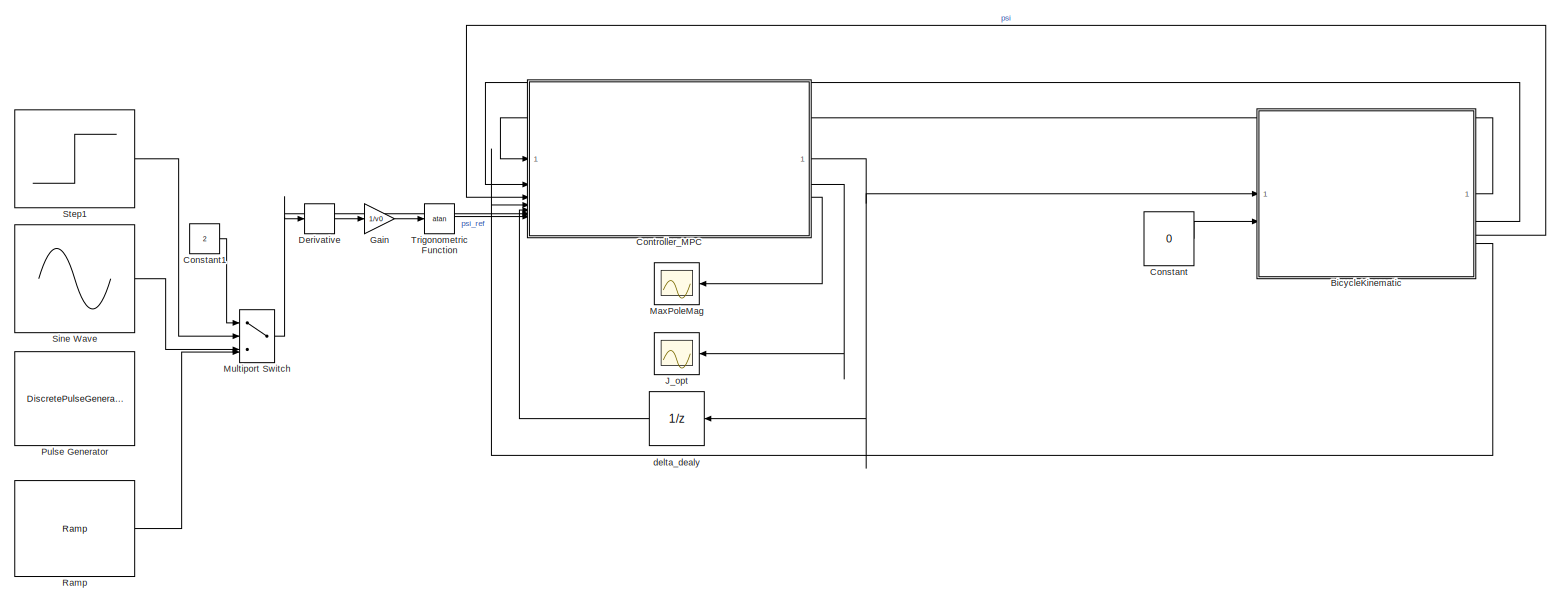
[diagram: root canvas - part 1/1, most of the canvas]
MODEL slx_6ee872757975
KIND model
CONFIG AbsTol = auto
CONFIG EnableMultiTasking = off
CONFIG FixedStep = 0.05
CONFIG MaxStep = auto
CONFIG MinStep = auto
CONFIG RelTol = 1e-4
CONFIG SampleTimeConstraint = Unconstrained
CONFIG SolverName = FixedStepDiscrete
CONFIG StartTime = 0.0
CONFIG StopTime = 20
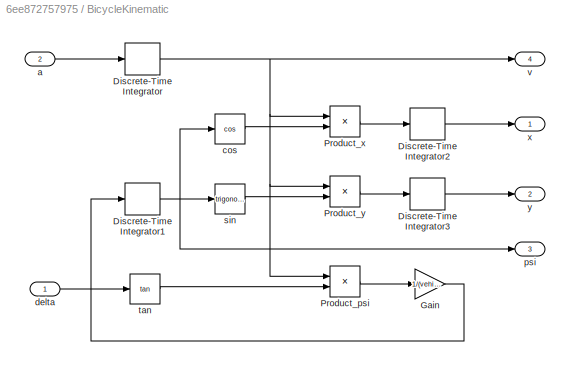
BLOCK [SubSystem] BicycleKinematic
BLOCK [DiscreteIntegrator] BicycleKinematic/Discrete-Time Integrator
  ICPrevOutput = DiscIntNeverNeededParam
  ICPrevScaledInput = DiscIntNeverNeededParam
  InitialCondition = v0
  InitialConditionSetting = Auto
  SampleTime = 0.05
BLOCK [DiscreteIntegrator] BicycleKinematic/Discrete-Time Integrator1
  ICPrevOutput = DiscIntNeverNeededParam
  ICPrevScaledInput = DiscIntNeverNeededParam
  InitialCondition = psi0
  InitialConditionSetting = Auto
  SampleTime = 0.05
BLOCK [DiscreteIntegrator] BicycleKinematic/Discrete-Time Integrator2
  ICPrevOutput = DiscIntNeverNeededParam
  ICPrevScaledInput = DiscIntNeverNeededParam
  InitialCondition = x0
  InitialConditionSetting = Auto
  SampleTime = 0.05
BLOCK [DiscreteIntegrator] BicycleKinematic/Discrete-Time Integrator3
  ICPrevOutput = DiscIntNeverNeededParam
  ICPrevScaledInput = DiscIntNeverNeededParam
  InitialCondition = y0
  InitialConditionSetting = Auto
  SampleTime = 0.05
BLOCK [Gain] BicycleKinematic/Gain
  Gain = 1/(vehicleParams.a + vehicleParams.b)
BLOCK [Product] BicycleKinematic/Product_psi
BLOCK [Product] BicycleKinematic/Product_x
BLOCK [Product] BicycleKinematic/Product_y
BLOCK [Inport] BicycleKinematic/a
  Port = 2
BLOCK [Trigonometry] BicycleKinematic/cos
  Operator = cos
BLOCK [Inport] BicycleKinematic/delta
BLOCK [Outport] BicycleKinematic/psi
  Port = 3
BLOCK [Trigonometry] BicycleKinematic/sin
BLOCK [Trigonometry] BicycleKinematic/tan
  Operator = tan
BLOCK [Outport] BicycleKinematic/v
  Port = 4
BLOCK [Outport] BicycleKinematic/x
BLOCK [Outport] BicycleKinematic/y
  Port = 2
BLOCK [Constant] Constant
  Value = 0
BLOCK [Constant] Constant1
  Value = 2
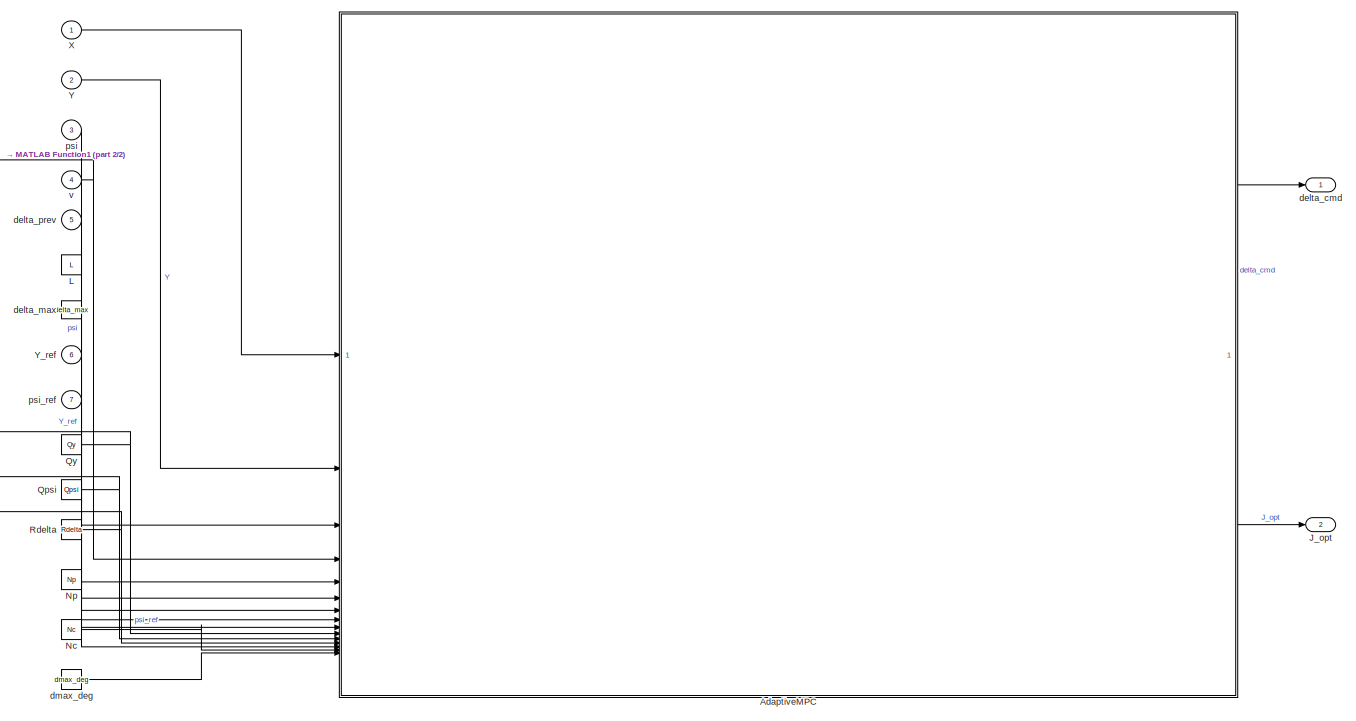
[diagram: Controller_MPC - part 1/2, center side, full height]
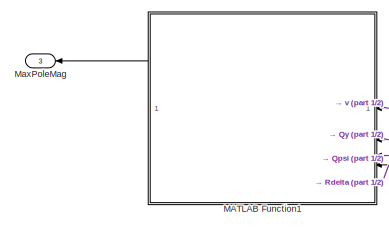
[diagram: Controller_MPC - part 2/2, middle left region]
BLOCK [SubSystem] Controller_MPC
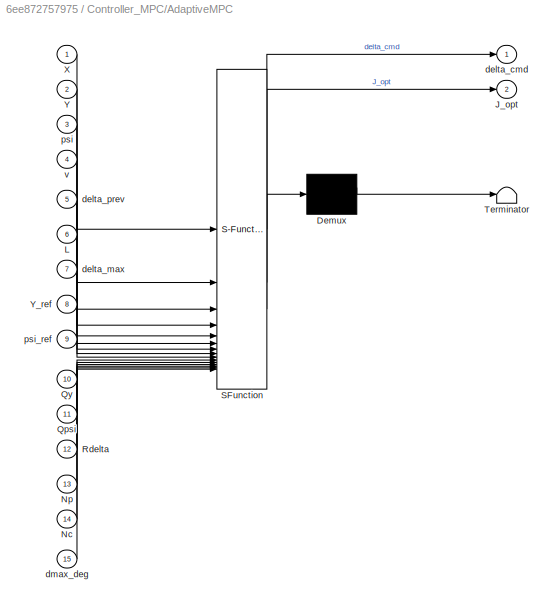
BLOCK [SubSystem] Controller_MPC/AdaptiveMPC
  ErrorFcn = Stateflow.Translate.translate
  PermitHierarchicalResolution = ExplicitOnly
  SFBlockType = MATLAB Function
  TreatAsAtomicUnit = on
BLOCK [Demux] Controller_MPC/AdaptiveMPC/ Demux 
  Outputs = 1
BLOCK [S-Function] Controller_MPC/AdaptiveMPC/ SFunction 
  EnableBusSupport = off
  FunctionName = sf_sfun
  PortCounts = [15 3]
  SFcnIsStateOwnerBlock = off
  SFunctionDeploymentMode = off
  Tag = Stateflow S-Function 2
BLOCK [Terminator] Controller_MPC/AdaptiveMPC/ Terminator 
BLOCK [Outport] Controller_MPC/AdaptiveMPC/J_opt
  Port = 2
BLOCK [Inport] Controller_MPC/AdaptiveMPC/L
  Port = 6
BLOCK [Inport] Controller_MPC/AdaptiveMPC/Nc
  Port = 14
BLOCK [Inport] Controller_MPC/AdaptiveMPC/Np
  Port = 13
BLOCK [Inport] Controller_MPC/AdaptiveMPC/Qpsi
  Port = 11
BLOCK [Inport] Controller_MPC/AdaptiveMPC/Qy
  Port = 10
BLOCK [Inport] Controller_MPC/AdaptiveMPC/Rdelta
  Port = 12
BLOCK [Inport] Controller_MPC/AdaptiveMPC/X
BLOCK [Inport] Controller_MPC/AdaptiveMPC/Y
  Port = 2
BLOCK [Inport] Controller_MPC/AdaptiveMPC/Y_ref
  Port = 8
BLOCK [Outport] Controller_MPC/AdaptiveMPC/delta_cmd
BLOCK [Inport] Controller_MPC/AdaptiveMPC/delta_max
  Port = 7
BLOCK [Inport] Controller_MPC/AdaptiveMPC/delta_prev
  Port = 5
BLOCK [Inport] Controller_MPC/AdaptiveMPC/dmax_deg
  Port = 15
BLOCK [Inport] Controller_MPC/AdaptiveMPC/psi
  Port = 3
BLOCK [Inport] Controller_MPC/AdaptiveMPC/psi_ref
  Port = 9
BLOCK [Inport] Controller_MPC/AdaptiveMPC/v
  Port = 4
BLOCK [Outport] Controller_MPC/J_opt
  Port = 2
BLOCK [Constant] Controller_MPC/L
  Value = L
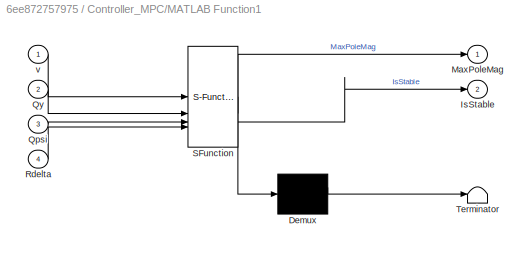
BLOCK [SubSystem] Controller_MPC/MATLAB Function1
  ErrorFcn = Stateflow.Translate.translate
  NameLocation = top
  PermitHierarchicalResolution = ExplicitOnly
  SFBlockType = MATLAB Function
  TreatAsAtomicUnit = on
BLOCK [Demux] Controller_MPC/MATLAB Function1/ Demux 
  Outputs = 1
BLOCK [S-Function] Controller_MPC/MATLAB Function1/ SFunction 
  EnableBusSupport = off
  FunctionName = sf_sfun
  PortCounts = [4 3]
  SFcnIsStateOwnerBlock = off
  SFunctionDeploymentMode = off
  Tag = Stateflow S-Function 1
BLOCK [Terminator] Controller_MPC/MATLAB Function1/ Terminator 
BLOCK [Outport] Controller_MPC/MATLAB Function1/IsStable
  Port = 2
BLOCK [Outport] Controller_MPC/MATLAB Function1/MaxPoleMag
BLOCK [Inport] Controller_MPC/MATLAB Function1/Qpsi
  Port = 3
BLOCK [Inport] Controller_MPC/MATLAB Function1/Qy
  Port = 2
BLOCK [Inport] Controller_MPC/MATLAB Function1/Rdelta
  Port = 4
BLOCK [Inport] Controller_MPC/MATLAB Function1/v
BLOCK [Outport] Controller_MPC/MaxPoleMag
  NameLocation = top
  Port = 3
BLOCK [Constant] Controller_MPC/Nc
  Value = Nc
BLOCK [Constant] Controller_MPC/Np
  Value = Np
BLOCK [Constant] Controller_MPC/Qpsi
  Value = Qpsi
BLOCK [Constant] Controller_MPC/Qy
  Value = Qy
BLOCK [Constant] Controller_MPC/Rdelta
  Value = Rdelta
BLOCK [Inport] Controller_MPC/X
BLOCK [Inport] Controller_MPC/Y
  Port = 2
BLOCK [Inport] Controller_MPC/Y_ref
  Port = 6
BLOCK [Outport] Controller_MPC/delta_cmd
BLOCK [Constant] Controller_MPC/delta_max
  Value = delta_max
BLOCK [Inport] Controller_MPC/delta_prev
  Port = 5
BLOCK [Constant] Controller_MPC/dmax_deg
  Value = dmax_deg
BLOCK [Inport] Controller_MPC/psi
  Port = 3
BLOCK [Inport] Controller_MPC/psi_ref
  Port = 7
BLOCK [Inport] Controller_MPC/v
  Port = 4
BLOCK [Derivative] Derivative
BLOCK [Gain] Gain
  Gain = 1/v0
BLOCK [Scope] J_opt
  ActiveDisplayYMaximum = 58.127890076972491
  ActiveDisplayYMinimum = -269.32940271572431
  DataLoggingVariableName = ScopeData2
  Floating = off
  GraphicalSettings = {"Style":{"BackgroundColor":[0.12941176470588237,0.12941176470588237,0.12941176470588237],"AxesColor":[0.07058823529411765,0.07058823529411765,0.07058823529411765],"LabelsColor":[0.8509803921568627,0.8509803921568627,0.8509803921568627],"PreserveColors":false,"Visible":[true],"LineStyle":["-"],"LineWidth":[1.5],"BarWidth":[0.9],"LineColor":["auto"],"LineFaceAlpha":[1],"LineEdgeAlpha":[1],"Marker":...<+1987ch>
  MultipleDisplayCache = [{"MaxYLimMag":1,"MaxYLimReal":58.127890076972491,"MinYLimMag":0,"MinYLimReal":-269.32940271572431,"PlotAsMagnitudePhase":false,"ShowGrid":true,"ShowLegend":false,"Title":"%<SignalLabel>","YLabel":""}]
  NameLocation = top
  NumInputPorts = 1
  ScopeFrameLocation = window
  WasSavedAsWebScope = on
  WindowPosition = [385.000000,543.000000,560.000000,420.000000,]
BLOCK [Scope] MaxPoleMag
  ActiveDisplayYMaximum = 0.92821068294370934
  ActiveDisplayYMinimum = -0.56874526901324
  DataLoggingVariableName = ScopeData5
  Floating = off
  GraphicalSettings = {"Style":{"BackgroundColor":[0.12941176470588237,0.12941176470588237,0.12941176470588237],"AxesColor":[0.07058823529411765,0.07058823529411765,0.07058823529411765],"LabelsColor":[0.8509803921568627,0.8509803921568627,0.8509803921568627],"PreserveColors":false,"Visible":[true],"LineStyle":["-"],"LineWidth":[1.5],"BarWidth":[0.9],"LineColor":["auto"],"LineFaceAlpha":[1],"LineEdgeAlpha":[1],"Marker":...<+1997ch>
  MultipleDisplayCache = [{"MaxYLimMag":1,"MaxYLimReal":0.92821068294370934,"MinYLimMag":0,"MinYLimReal":-0.56874526901324,"PlotAsMagnitudePhase":false,"ShowGrid":true,"ShowLegend":false,"Title":"%<SignalLabel>","YLabel":""}]
  NameLocation = top
  NumInputPorts = 1
  ScopeFrameLocation = window
  WasSavedAsWebScope = on
  WindowPosition = [680.000000,367.000000,560.000000,420.000000,]
BLOCK [MultiPortSwitch] Multiport Switch
  DataPortOrder = Zero-based contiguous
  InputSameDT = off
  SaturateOnIntegerOverflow = off
  zeroidx = on
BLOCK [DiscretePulseGenerator] Pulse Generator
  Period = 10
  PhaseDelay = 1
  PulseType = Time based
  PulseWidth = 10
BLOCK [Reference] Ramp  REF=simulink/Sources/Ramp
  SourceBlock = simulink/Sources/Ramp
  SourceType = Ramp
BLOCK [Sin] Sine Wave
  SampleTime = 0
BLOCK [Step] Step1
  SampleTime = 0
BLOCK [Trigonometry] Trigonometric Function
  Operator = atan
BLOCK [UnitDelay] delta_dealy
  HasFrameUpgradeWarning = on
  SampleTime = 0.05
NET BicycleKinematic/Discrete-Time Integrator1:1 -> BicycleKinematic/cos:1, BicycleKinematic/psi:1, BicycleKinematic/sin:1
LINE BicycleKinematic/Discrete-Time Integrator2:1 -> BicycleKinematic/x:1
LINE BicycleKinematic/Discrete-Time Integrator3:1 -> BicycleKinematic/y:1
NET BicycleKinematic/Discrete-Time Integrator:1 -> BicycleKinematic/Product_psi:1, BicycleKinematic/Product_x:1, BicycleKinematic/Product_y:1, BicycleKinematic/v:1
LINE BicycleKinematic/Gain:1 -> BicycleKinematic/Discrete-Time Integrator1:1
LINE BicycleKinematic/Product_psi:1 -> BicycleKinematic/Gain:1
LINE BicycleKinematic/Product_x:1 -> BicycleKinematic/Discrete-Time Integrator2:1
LINE BicycleKinematic/Product_y:1 -> BicycleKinematic/Discrete-Time Integrator3:1
LINE BicycleKinematic/a:1 -> BicycleKinematic/Discrete-Time Integrator:1
LINE BicycleKinematic/cos:1 -> BicycleKinematic/Product_x:2
LINE BicycleKinematic/delta:1 -> BicycleKinematic/tan:1
LINE BicycleKinematic/sin:1 -> BicycleKinematic/Product_y:2
LINE BicycleKinematic/tan:1 -> BicycleKinematic/Product_psi:2
LINE BicycleKinematic:1 -> Controller_MPC:1
LINE BicycleKinematic:2 -> Controller_MPC:2
LINE BicycleKinematic:3 -> Controller_MPC:3
LINE BicycleKinematic:4 -> Controller_MPC:4
LINE Constant1:1 -> Multiport Switch:1
LINE Constant:1 -> BicycleKinematic:2
LINE Controller_MPC/AdaptiveMPC:1 -> Controller_MPC/delta_cmd:1
LINE Controller_MPC/AdaptiveMPC:2 -> Controller_MPC/J_opt:1
LINE Controller_MPC/L:1 -> Controller_MPC/AdaptiveMPC:6
LINE Controller_MPC/MATLAB Function1:1 -> Controller_MPC/MaxPoleMag:1
LINE Controller_MPC/Nc:1 -> Controller_MPC/AdaptiveMPC:14
LINE Controller_MPC/Np:1 -> Controller_MPC/AdaptiveMPC:13
NET Controller_MPC/Qpsi:1 -> Controller_MPC/AdaptiveMPC:11, Controller_MPC/MATLAB Function1:3
NET Controller_MPC/Qy:1 -> Controller_MPC/AdaptiveMPC:10, Controller_MPC/MATLAB Function1:2
NET Controller_MPC/Rdelta:1 -> Controller_MPC/AdaptiveMPC:12, Controller_MPC/MATLAB Function1:4
LINE Controller_MPC/X:1 -> Controller_MPC/AdaptiveMPC:1
LINE Controller_MPC/Y:1 -> Controller_MPC/AdaptiveMPC:2
LINE Controller_MPC/Y_ref:1 -> Controller_MPC/AdaptiveMPC:8
LINE Controller_MPC/delta_max:1 -> Controller_MPC/AdaptiveMPC:7
LINE Controller_MPC/delta_prev:1 -> Controller_MPC/AdaptiveMPC:5
LINE Controller_MPC/dmax_deg:1 -> Controller_MPC/AdaptiveMPC:15
LINE Controller_MPC/psi:1 -> Controller_MPC/AdaptiveMPC:3
LINE Controller_MPC/psi_ref:1 -> Controller_MPC/AdaptiveMPC:9
NET Controller_MPC/v:1 -> Controller_MPC/AdaptiveMPC:4, Controller_MPC/MATLAB Function1:1
NET Controller_MPC:1 -> BicycleKinematic:1, delta_dealy:1
LINE Controller_MPC:2 -> J_opt:1
LINE Controller_MPC:3 -> MaxPoleMag:1
LINE Derivative:1 -> Gain:1
LINE Gain:1 -> Trigonometric Function:1
NET Multiport Switch:1 -> Controller_MPC:6, Derivative:1
LINE Ramp:1 -> Multiport Switch:4
LINE Sine Wave:1 -> Multiport Switch:3
LINE Step1:1 -> Multiport Switch:2
LINE Trigonometric Function:1 -> Controller_MPC:7
LINE delta_dealy:1 -> Controller_MPC:5
note: NET lines group one-source signal fan-out (src -> all destinations, sorted); 1:1 wires keep LINE
CHART Controller_MPC/MATLAB Function1 states=1 transitions=1
  STATE_LABEL 'eML_blk_kernel()'
  STATE_LABEL "SCRIPT:\nfunction [MaxPoleMag, IsStable] = fcn(v, Qy, Qpsi, Rdelta)\n    % [MPC 실시간 안정성 감시기 - 수정버전]\n    % Code Generation 오류 수정 완료\n    \n    % 1. 외부 함수 선언 (dlqr은 C코드 변환이 안되므로 MATLAB 엔진을 빌려 씀)\n    coder.extrinsic('dlqr'); \n\n    % 2. 차량 파라미터\n    L = 2.7;    \n    Ts = 0.05;  \n    \n    % 속도 0 방지 (계산 오류 방지)\n    v_safe = v;\n    if v_safe < 0.1\n        v_safe = 0.1;\n    end\n\n    % 3. 행렬 구성 (Discrete Model)\n...<+846ch>"
CHART Controller_MPC/AdaptiveMPC states=1 transitions=1
  STATE_LABEL 'eML_blk_kernel()'
  STATE_LABEL "SCRIPT:\nfunction [delta_cmd, J_opt] = AdaptiveLinMPC( ...\n    X, Y, psi, v, delta_prev, ...\n    L, delta_max, Y_ref, psi_ref,...\n    Qy, Qpsi, Rdelta, Np, Nc, dmax_deg)\n%---------------------------------\n% AdaptiveLinMPC\n%\n% 수정사항: \n% 1. coder.varsize('dU_tmp') 삭제 (mxArray 에러 해결)\n%---------------------------------\n    \n    % [필수] coder.extrinsic 선언\n    coder.extrinsic('quadprog','optimoptions');\n  ...<+3608ch>"
CHART  states=0 transitions=0
CHART  states=0 transitions=0
